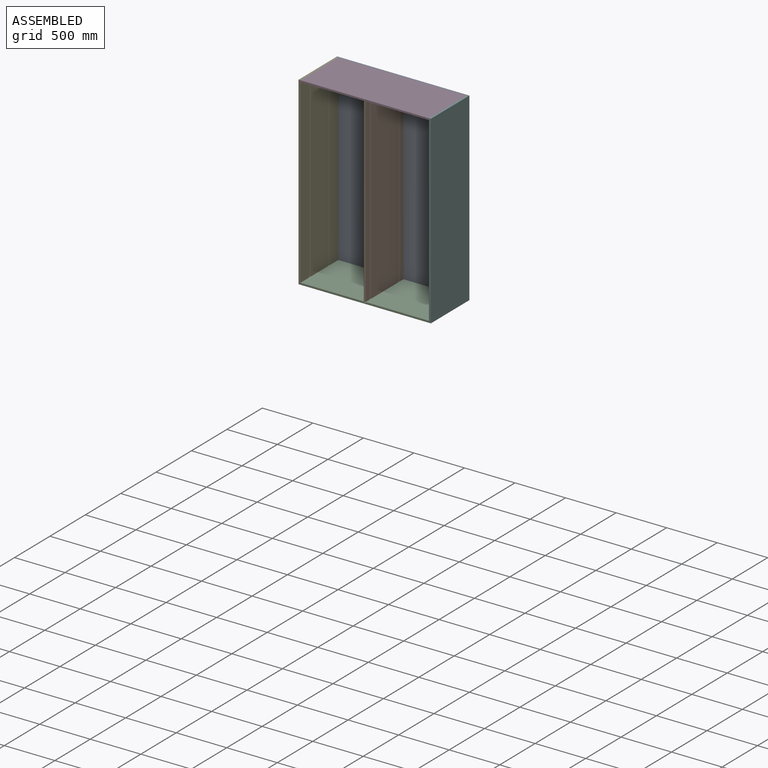
[diagram: assembled view]
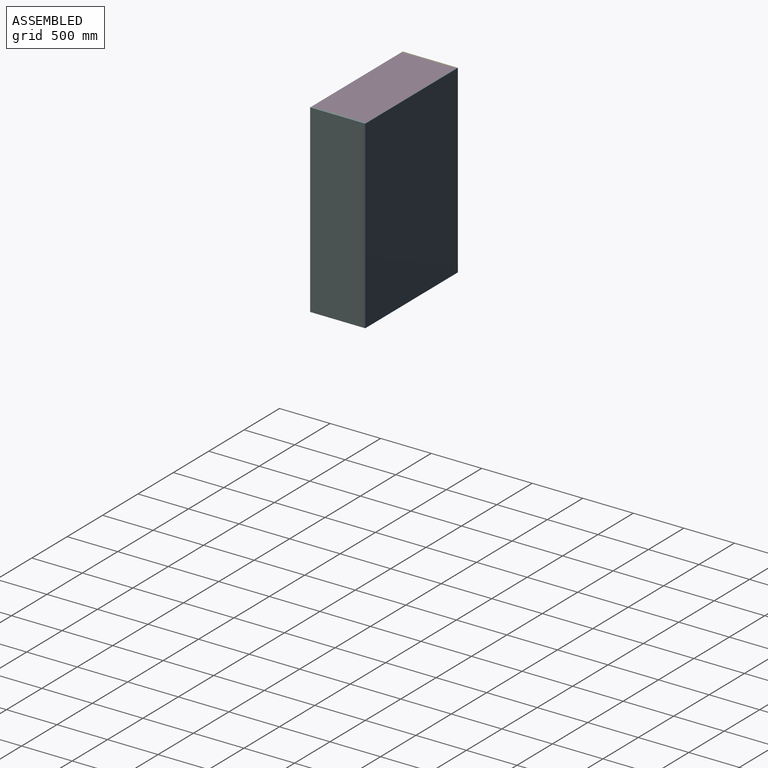
[diagram: assembled view, second angle]
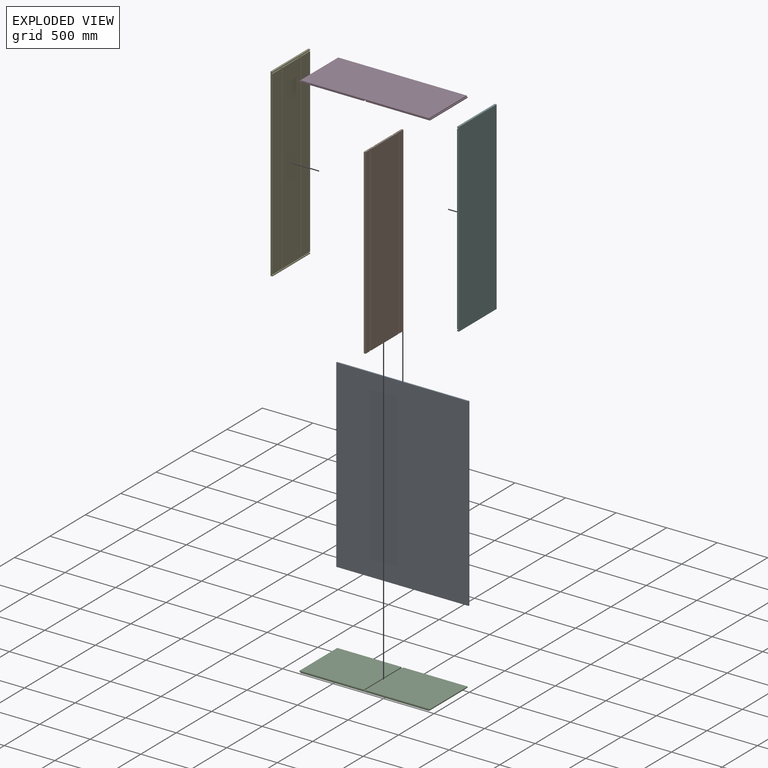
[diagram: exploded view]
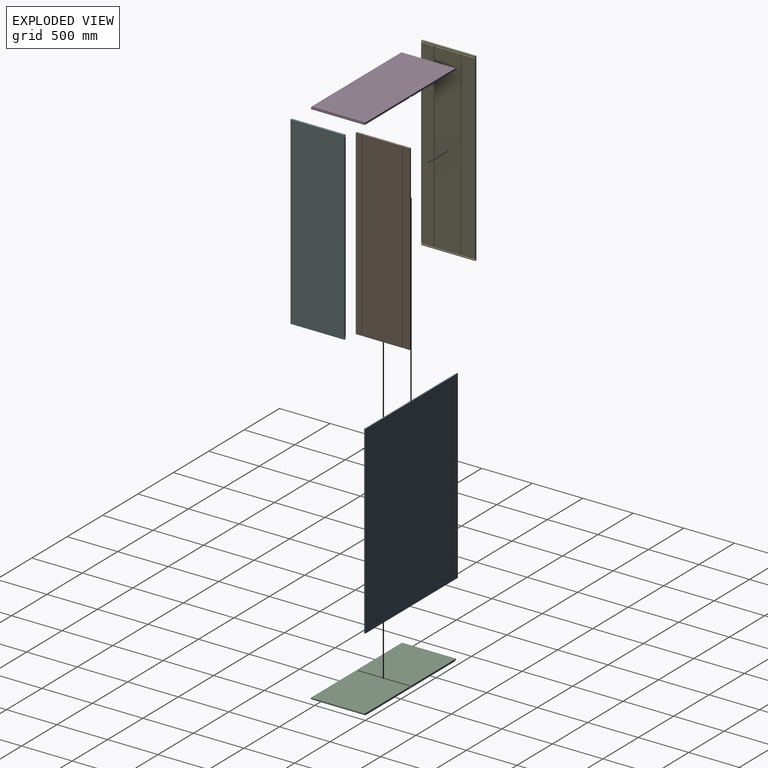
[diagram: exploded view, second angle]
ASSEMBLY  parts=6 mates=5
PART A: 6 faces, bbox 1308.1x11.9x1828.8 mm
  f0: plane 1308.1x11.91mm, normal (0,0,-1), area 15574.6mm2, adj f1,f3,f4,f5
  f1: plane 1828.8x11.91mm, normal (1,0,0), area 21774.1mm2, adj f0,f2,f4,f5
  f2: plane 1308.1x11.91mm, normal (0,0,1), area 15574.6mm2, adj f1,f3,f4,f5
  f3: plane 1828.8x11.91mm, normal (-1,0,0), area 21774.1mm2, adj f0,f2,f4,f5
  f4: plane 1828.8x1308.1mm, normal (0,-1,0), area 2392253.3mm2, adj f0,f1,f2,f3
  f5: plane 1828.8x1308.1mm, normal (0,1,0), area 2392253.3mm2, adj f0,f1,f2,f3
PART B: 22 faces, bbox 533.4x18.3x1801.4 mm
  f0: plane 1801.43x254mm, normal (0,-1,0), area 457562.8mm2, adj f4,f5,f11,f18
  f1: plane 1801.43x123.83mm, normal (0,-1,0), area 223061.9mm2, adj f4,f5,f6,f10
  f2: plane 1801.43x57.15mm, normal (0,1,0), area 102951.6mm2, adj f4,f5,f6,f19
  f3: plane 1801.43x387.35mm, normal (0,1,0), area 697783.3mm2, adj f4,f5,f14,f21
  f4: plane 533.4x18.26mm, normal (0,0,1), area 9334.7mm2, adj f0,f1,f2,f3,f6,f7,f8,f9
  f5: plane 533.4x18.26mm, normal (0,0,-1), area 9334.7mm2, adj f0,f1,f2,f3,f6,f7,f8,f9
  f6: plane 1801.43x18.26mm, normal (-1,0,0), area 32887.3mm2, adj f1,f2,f4,f5
  f7: plane 1801.43x18.26mm, normal (1,0,0), area 32887.3mm2, adj f4,f5,f8,f9
  f8: plane 1801.43x123.83mm, normal (0,-1,0), area 223061.9mm2, adj f4,f5,f7,f16
  f9: plane 1801.43x57.15mm, normal (0,1,0), area 102951.6mm2, adj f4,f5,f7,f13
  f10: plane 1801.43x6.35mm, normal (1,0,0), area 11439.1mm2, adj f1,f4,f5,f12
  f11: plane 1801.43x6.35mm, normal (-1,0,0), area 11439.1mm2, adj f0,f4,f5,f12
  f12: plane 1801.43x15.88mm, normal (0,-1,0), area 28597.7mm2, adj f4,f5,f10,f11
  f13: plane 1801.43x6.35mm, normal (-1,0,0), area 11439.1mm2, adj f4,f5,f9,f15
  f14: plane 1801.43x6.35mm, normal (1,0,0), area 11439.1mm2, adj f3,f4,f5,f15
  f15: plane 1801.43x15.88mm, normal (0,1,0), area 28597.7mm2, adj f4,f5,f13,f14
  f16: plane 1801.43x6.35mm, normal (-1,0,0), area 11439.1mm2, adj f4,f5,f8,f17
  f17: plane 1801.43x15.88mm, normal (0,-1,0), area 28597.7mm2, adj f4,f5,f16,f18
  f18: plane 1801.43x6.35mm, normal (1,0,0), area 11439.1mm2, adj f0,f4,f5,f17
  f19: plane 1801.43x6.35mm, normal (1,0,0), area 11439.1mm2, adj f2,f4,f5,f20
  f20: plane 1801.43x15.88mm, normal (0,1,0), area 28597.7mm2, adj f4,f5,f19,f21
  f21: plane 1801.43x6.35mm, normal (-1,0,0), area 11439.1mm2, adj f3,f4,f5,f20
PART C: 14 faces, bbox 533.4x18.3x1289.8 mm
  f0: plane 533.4x9.13mm, normal (0,0,1), area 4868.9mm2, adj f3,f4,f5,f11
  f1: plane 533.4x9.13mm, normal (0,0,-1), area 4868.9mm2, adj f4,f5,f6,f12
  f2: plane 1271.59x533.4mm, normal (0,-1,0), area 678264.8mm2, adj f4,f5,f10,f13
  f3: plane 635.79x533.4mm, normal (0,1,0), area 339132.4mm2, adj f0,f4,f5,f8
  f4: plane 1289.84x18.26mm, normal (-1,0,0), area 23214.4mm2, adj f0,f1,f2,f3,f6,f7,f8,f9
  f5: plane 1289.84x18.26mm, normal (1,0,0), area 23214.4mm2, adj f0,f1,f2,f3,f6,f7,f8,f9
  f6: plane 635.79x533.4mm, normal (0,1,0), area 339132.4mm2, adj f1,f4,f5,f7
  f7: plane 533.4x9.13mm, normal (0,0,1), area 4868.9mm2, adj f4,f5,f6,f9
  f8: plane 533.4x9.13mm, normal (0,0,-1), area 4868.9mm2, adj f3,f4,f5,f9
  f9: plane 533.4x18.26mm, normal (0,1,0), area 9737.9mm2, adj f4,f5,f7,f8
  f10: plane 533.4x9.13mm, normal (0,0,1), area 4868.9mm2, adj f2,f4,f5,f11
  f11: plane 533.4x9.13mm, normal (0,-1,0), area 4868.9mm2, adj f0,f4,f5,f10
  f12: plane 533.4x9.13mm, normal (0,-1,0), area 4868.9mm2, adj f1,f4,f5,f13
  f13: plane 533.4x9.13mm, normal (0,0,-1), area 4868.9mm2, adj f2,f4,f5,f12
PART D: same geometry as C
PART E: 22 faces, bbox 533.4x19.1x1828.8 mm
  f0: plane 1792.29x250.83mm, normal (0,-1,0), area 449550.5mm2, adj f12,f14,f16,f20
  f1: plane 1792.29x125.41mm, normal (0,-1,0), area 224775.3mm2, adj f6,f12,f14,f17
  f2: plane 533.4x9.13mm, normal (0,-1,0), area 4868.9mm2, adj f4,f6,f7,f13
  f3: plane 1792.29x125.41mm, normal (0,-1,0), area 224775.3mm2, adj f4,f12,f14,f19
  f4: plane 1828.8x19.05mm, normal (1,0,0), area 34664.7mm2, adj f2,f3,f5,f7,f8,f9,f10,f11
  f5: plane 533.4x19.05mm, normal (0,0,1), area 10161.3mm2, adj f4,f6,f8,f9
  f6: plane 1828.8x19.05mm, normal (-1,0,0), area 34664.7mm2, adj f1,f2,f5,f7,f8,f9,f10,f11
  f7: plane 533.4x19.05mm, normal (0,0,-1), area 10161.3mm2, adj f2,f4,f6,f9
  f8: plane 533.4x9.13mm, normal (0,-1,0), area 4868.9mm2, adj f4,f5,f6,f10
  f9: plane 1828.8x533.4mm, normal (0,1,0), area 975481.9mm2, adj f4,f5,f6,f7
  f10: plane 533.4x9.53mm, normal (0,0,-1), area 5080.6mm2, adj f4,f6,f8,f11
  f11: plane 533.4x9.13mm, normal (0,-1,0), area 4868.9mm2, adj f4,f6,f10,f12
  f12: plane 533.4x9.53mm, normal (0,0,1), area 4879mm2, adj f0,f1,f3,f4,f6,f11,f16,f17
  f13: plane 533.4x9.53mm, normal (0,0,1), area 5080.6mm2, adj f2,f4,f6,f15
  f14: plane 533.4x9.53mm, normal (0,0,-1), area 4879mm2, adj f0,f1,f3,f4,f6,f15,f16,f17
  f15: plane 533.4x9.13mm, normal (0,-1,0), area 4868.9mm2, adj f4,f6,f13,f14
  f16: plane 1792.29x6.35mm, normal (-1,0,0), area 11381mm2, adj f0,f12,f14,f18
  f17: plane 1792.29x6.35mm, normal (1,0,0), area 11381mm2, adj f1,f12,f14,f18
  f18: plane 1792.29x15.88mm, normal (0,-1,0), area 28452.6mm2, adj f12,f14,f16,f17
  f19: plane 1792.29x6.35mm, normal (-1,0,0), area 11381mm2, adj f3,f12,f14,f21
  f20: plane 1792.29x6.35mm, normal (1,0,0), area 11381mm2, adj f0,f12,f14,f21
  f21: plane 1792.29x15.88mm, normal (0,-1,0), area 28452.6mm2, adj f12,f14,f19,f20
PART F: same geometry as E
PLACE A t=(-654.05,0,914.4)mm
PLACE B rot(axis=(0,0,-1),90deg) t=(-644.53,-4123.36,409.84)mm
PLACE C rot(axis=(0.58,-0.58,-0.58),120deg) t=(-328.6,-6152.26,18.26)mm
PLACE D rot(axis=(-0.58,0.58,-0.58),120deg) t=(-978.7,-6152.26,1810.54)mm
PLACE E rot(axis=(0,0,1),90deg) t=(-1308.1,6403.16,754)mm
PLACE F rot(axis=(0,0,-1),90deg) t=(0.79,-6960.37,754)mm
MATE fastened B.f4 <-> D.f9  axis (0,0,-1) through (-662.78,-545.31,1819.67)mm
MATE fastened A.f2 <-> E.f5  axis (0,0,1) through (-1308.1,-11.91,1828.8)mm
MATE fastened D.f3 <-> F.f12  axis (0,0,-1) through (-8.73,-11.91,1810.54)mm
MATE fastened C.f6 <-> F.f14  axis (0,0,1) through (-8.73,-11.91,18.26)mm
MATE fastened E.f12 <-> D.f6  axis (0,0,-1) through (-1298.58,-545.31,1810.54)mm
